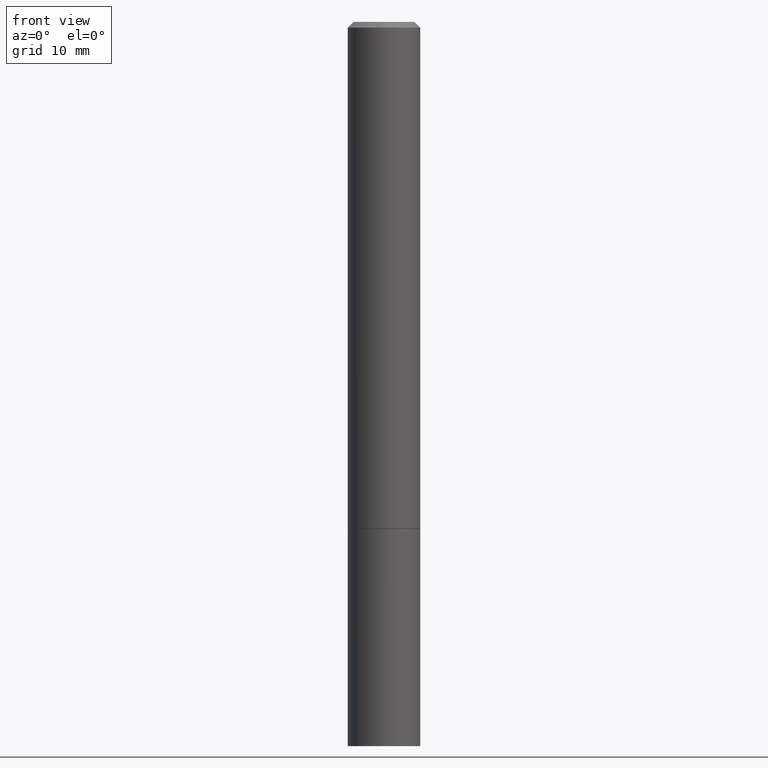
[diagram: clean part render]
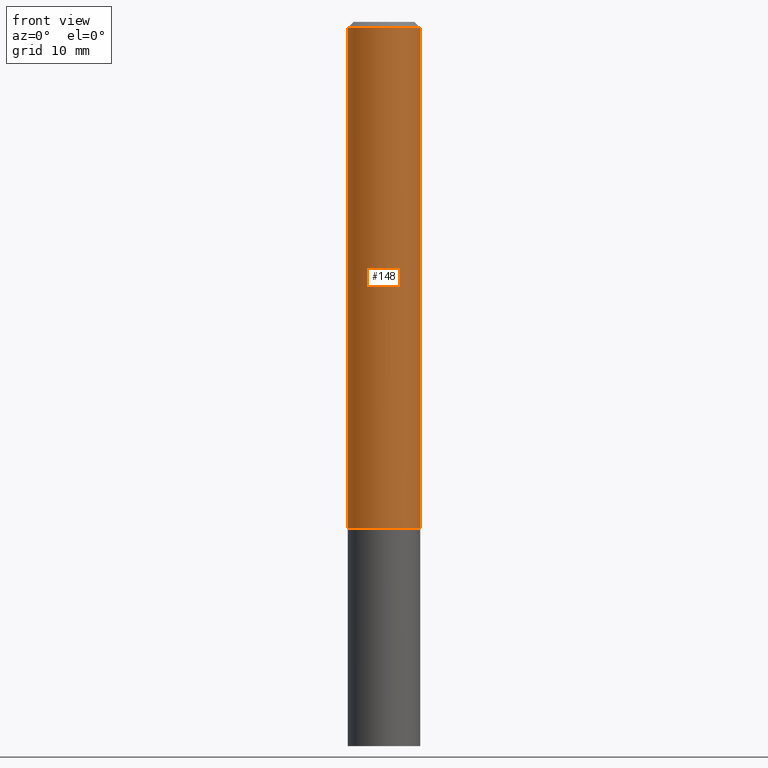
[diagram: same view with one face highlighted and labeled with its STEP entity id]
A machine part, front view. The second image highlights one B-rep face of the part: STEP entity #148.
In plain terms, the highlighted cylindrical surface (edge-blend (fillet) strip) has radius 3.175 mm, axis along (-0, 0, 1).
Its self-contained STEP definition (entity closure, byte-faithful):
#7 = LINE ( 'NONE', #84, #292 ) ;
#15 = AXIS2_PLACEMENT_3D ( 'NONE', #36, #265, #140 ) ;
#27 = DIRECTION ( 'NONE',  ( 1.000000000000000000, -6.982962677686270655E-15, 0.000000000000000000 ) ) ;
#36 = CARTESIAN_POINT ( 'NONE',  ( 0.000000000000000000, 0.000000000000000000, 0.000000000000000000 ) ) ;
#43 = AXIS2_PLACEMENT_3D ( 'NONE', #117, #342, #225 ) ;
#58 = DIRECTION ( 'NONE',  ( -2.445468806185136877E-29, 3.491481338843145188E-15, 1.000000000000000000 ) ) ;
#62 = EDGE_CURVE ( 'NONE', #359, #113, #7, .T. ) ;
#63 = DIRECTION ( 'NONE',  ( -2.445468806185136597E-29, 3.491481338843145583E-15, 1.000000000000000000 ) ) ;
#77 = AXIS2_PLACEMENT_3D ( 'NONE', #204, #63, #27 ) ;
#78 = ORIENTED_EDGE ( 'NONE', *, *, #181, .F. ) ;
#81 = ORIENTED_EDGE ( 'NONE', *, *, #144, .T. ) ;
#84 = CARTESIAN_POINT ( 'NONE',  ( 0.1249999999999999029, -8.728703347107826486E-16, 6.095220969744914837E-30 ) ) ;
#98 = CARTESIAN_POINT ( 'NONE',  ( 0.1250000000000000000, -6.979471196347445792E-15, -1.749000000000000110 ) ) ;
#101 = EDGE_CURVE ( 'NONE', #242, #113, #212, .T. ) ;
#105 = CIRCLE ( 'NONE', #77, 0.1250000000000000000 ) ;
#113 = VERTEX_POINT ( 'NONE', #230 ) ;
#117 = CARTESIAN_POINT ( 'NONE',  ( 4.890937612370283668E-31, -6.982962677686305168E-17, -0.02000000000000004205 ) ) ;
#120 = VERTEX_POINT ( 'NONE', #147 ) ;
#126 = ORIENTED_EDGE ( 'NONE', *, *, #101, .F. ) ;
#140 = DIRECTION ( 'NONE',  ( 1.000000000000000000, -6.982962677686266711E-15, 4.876176775795935793E-29 ) ) ;
#141 = CARTESIAN_POINT ( 'NONE',  ( -0.1249999999999999029, 8.881784197001245421E-16, -6.148668862818627323E-30 ) ) ;
#144 = EDGE_CURVE ( 'NONE', #120, #359, #105, .T. ) ;
#147 = CARTESIAN_POINT ( 'NONE',  ( -0.1250000000000000278, -2.200036824506634488E-15, -1.749000000000000110 ) ) ;
#148 = ADVANCED_FACE ( 'NONE', ( #176 ), #291, .T. ) ;
#173 = EDGE_LOOP ( 'NONE', ( #78, #81, #319, #126 ) ) ;
#176 = FACE_OUTER_BOUND ( 'NONE', #173, .T. ) ;
#181 = EDGE_CURVE ( 'NONE', #120, #242, #307, .T. ) ;
#204 = CARTESIAN_POINT ( 'NONE',  ( 4.277124942017804562E-29, -6.106600861636661664E-15, -1.749000000000000110 ) ) ;
#212 = CIRCLE ( 'NONE', #43, 0.1249999999999997780 ) ;
#225 = DIRECTION ( 'NONE',  ( 1.000000000000000000, -6.982962677686266711E-15, 0.000000000000000000 ) ) ;
#230 = CARTESIAN_POINT ( 'NONE',  ( 0.1249999999999997780, -9.273918764983029686E-16, -0.02000000000000004205 ) ) ;
#231 = CARTESIAN_POINT ( 'NONE',  ( -0.1249999999999997780, 8.030407079339186601E-16, -0.02000000000000004205 ) ) ;
#242 = VERTEX_POINT ( 'NONE', #231 ) ;
#244 = VECTOR ( 'NONE', #256, 39.37007874015748143 ) ;
#256 = DIRECTION ( 'NONE',  ( -2.445468806185136877E-29, 3.491481338843145188E-15, 1.000000000000000000 ) ) ;
#265 = DIRECTION ( 'NONE',  ( -2.445468806185136597E-29, 3.491481338843145583E-15, 1.000000000000000000 ) ) ;
#291 = CYLINDRICAL_SURFACE ( 'NONE', #15, 0.1249999999999999029 ) ;
#292 = VECTOR ( 'NONE', #58, 39.37007874015748143 ) ;
#307 = LINE ( 'NONE', #141, #244 ) ;
#319 = ORIENTED_EDGE ( 'NONE', *, *, #62, .T. ) ;
#342 = DIRECTION ( 'NONE',  ( -2.445468806185136597E-29, 3.491481338843145583E-15, 1.000000000000000000 ) ) ;
#359 = VERTEX_POINT ( 'NONE', #98 ) ;